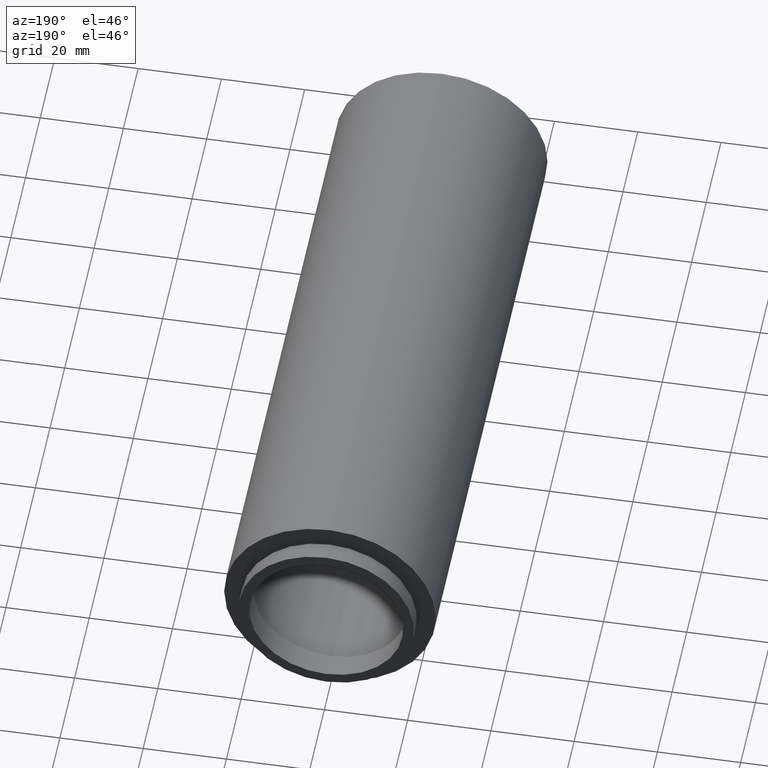
[diagram: clean part render]
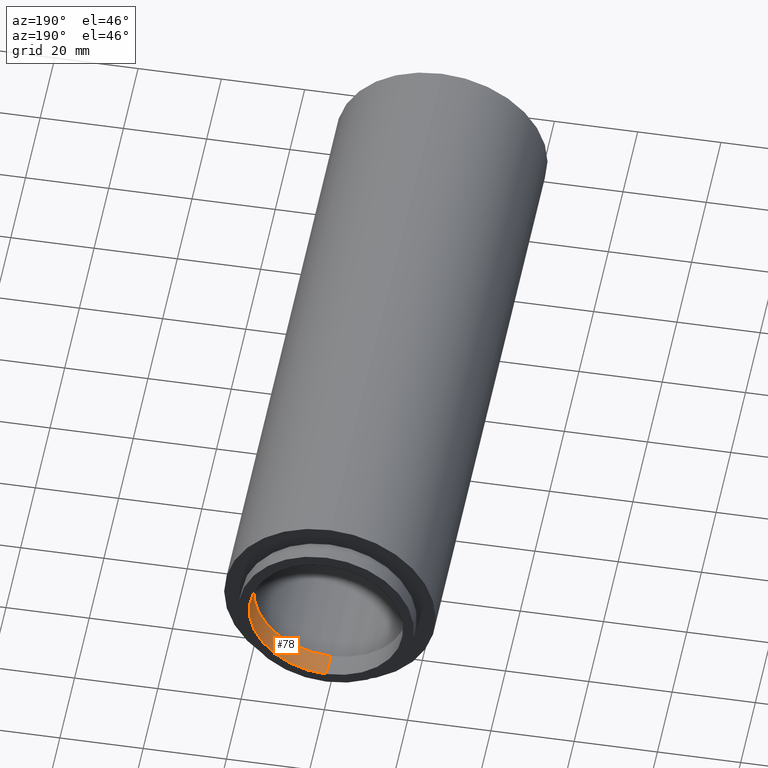
[diagram: same view with one face highlighted and labeled with its STEP entity id]
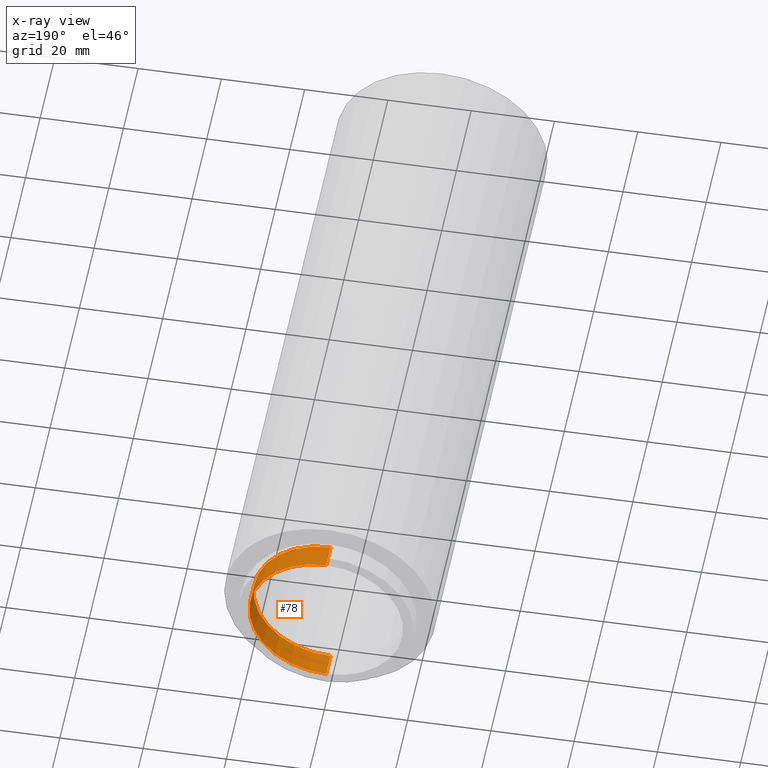
[diagram: x-ray of the same camera — body ghosted, the highlighted face saturated]
A machine part, auxiliary view. The second image highlights one B-rep face of the part: STEP entity #78.
The next image is the same camera in x-ray: the body ghosted, the highlighted face saturated — about 0% of this face is hidden behind the body in this view.
In plain terms, the highlighted cylindrical surface (partial cylindrical patch) has radius 18.5 mm, axis along (-0, 1, -0).
Its self-contained STEP definition (entity closure, byte-faithful):
#13 = CARTESIAN_POINT ( 'NONE',  ( 0.0000000000000000000, 161.3761669434274500, 18.50000000000000000 ) ) ;
#25 = AXIS2_PLACEMENT_3D ( 'NONE', #338, #479, #200 ) ;
#39 = VERTEX_POINT ( 'NONE', #455 ) ;
#61 = DIRECTION ( 'NONE',  ( -0.0000000000000000000, 1.000000000000000000, -0.0000000000000000000 ) ) ;
#70 = ORIENTED_EDGE ( 'NONE', *, *, #143, .F. ) ;
#78 = ADVANCED_FACE ( 'NONE', ( #416 ), #409, .F. ) ;
#118 = ORIENTED_EDGE ( 'NONE', *, *, #300, .T. ) ;
#119 = VERTEX_POINT ( 'NONE', #310 ) ;
#135 = ORIENTED_EDGE ( 'NONE', *, *, #535, .F. ) ;
#140 = VERTEX_POINT ( 'NONE', #414 ) ;
#143 = EDGE_CURVE ( 'NONE', #39, #140, #395, .T. ) ;
#194 = DIRECTION ( 'NONE',  ( 0.0000000000000000000, 0.0000000000000000000, 1.000000000000000000 ) ) ;
#200 = DIRECTION ( 'NONE',  ( 0.0000000000000000000, 0.0000000000000000000, 1.000000000000000000 ) ) ;
#212 = ORIENTED_EDGE ( 'NONE', *, *, #234, .T. ) ;
#230 = DIRECTION ( 'NONE',  ( -0.0000000000000000000, 1.000000000000000000, -0.0000000000000000000 ) ) ;
#234 = EDGE_CURVE ( 'NONE', #119, #140, #592, .T. ) ;
#238 = CIRCLE ( 'NONE', #541, 18.50000000000000000 ) ;
#240 = DIRECTION ( 'NONE',  ( -0.0000000000000000000, 1.000000000000000000, -0.0000000000000000000 ) ) ;
#254 = VECTOR ( 'NONE', #61, 1000.000000000000000 ) ;
#285 = AXIS2_PLACEMENT_3D ( 'NONE', #550, #505, #367 ) ;
#300 = EDGE_CURVE ( 'NONE', #573, #119, #599, .T. ) ;
#310 = CARTESIAN_POINT ( 'NONE',  ( 0.0000000000000000000, 157.3999999999999800, 18.50000000000000000 ) ) ;
#338 = CARTESIAN_POINT ( 'NONE',  ( 0.0000000000000000000, 157.3999999999999800, 0.0000000000000000000 ) ) ;
#355 = VECTOR ( 'NONE', #230, 1000.000000000000000 ) ;
#367 = DIRECTION ( 'NONE',  ( 0.0000000000000000000, 0.0000000000000000000, 1.000000000000000000 ) ) ;
#395 = LINE ( 'NONE', #514, #355 ) ;
#409 = CYLINDRICAL_SURFACE ( 'NONE', #285, 18.50000000000000000 ) ;
#414 = CARTESIAN_POINT ( 'NONE',  ( 2.265596578422603400E-015, 157.3999999999999800, -18.50000000000000000 ) ) ;
#416 = FACE_OUTER_BOUND ( 'NONE', #534, .T. ) ;
#419 = CARTESIAN_POINT ( 'NONE',  ( 0.0000000000000000000, 151.3999999999999800, 0.0000000000000000000 ) ) ;
#455 = CARTESIAN_POINT ( 'NONE',  ( 2.265596578422603400E-015, 151.3999999999999800, -18.50000000000000000 ) ) ;
#479 = DIRECTION ( 'NONE',  ( -0.0000000000000000000, 1.000000000000000000, -0.0000000000000000000 ) ) ;
#505 = DIRECTION ( 'NONE',  ( -0.0000000000000000000, 1.000000000000000000, -0.0000000000000000000 ) ) ;
#514 = CARTESIAN_POINT ( 'NONE',  ( 2.265596578422603400E-015, 161.3761669434274500, -18.50000000000000000 ) ) ;
#528 = CARTESIAN_POINT ( 'NONE',  ( 0.0000000000000000000, 151.3999999999999800, 18.50000000000000000 ) ) ;
#534 = EDGE_LOOP ( 'NONE', ( #70, #135, #118, #212 ) ) ;
#535 = EDGE_CURVE ( 'NONE', #573, #39, #238, .T. ) ;
#541 = AXIS2_PLACEMENT_3D ( 'NONE', #419, #240, #194 ) ;
#550 = CARTESIAN_POINT ( 'NONE',  ( 0.0000000000000000000, 161.3761669434274500, 0.0000000000000000000 ) ) ;
#573 = VERTEX_POINT ( 'NONE', #528 ) ;
#592 = CIRCLE ( 'NONE', #25, 18.50000000000000000 ) ;
#599 = LINE ( 'NONE', #13, #254 ) ;